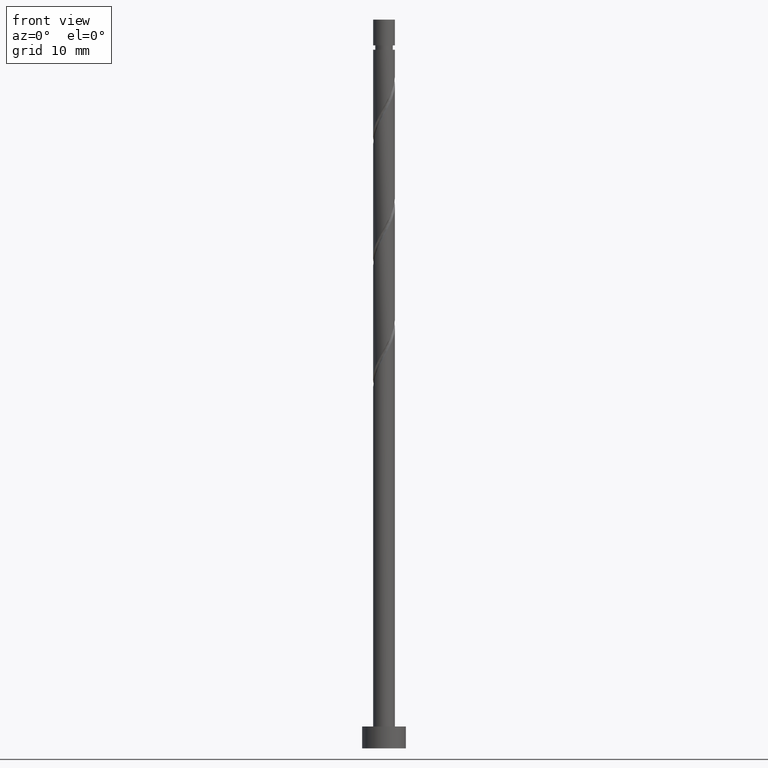
[diagram: clean part render]
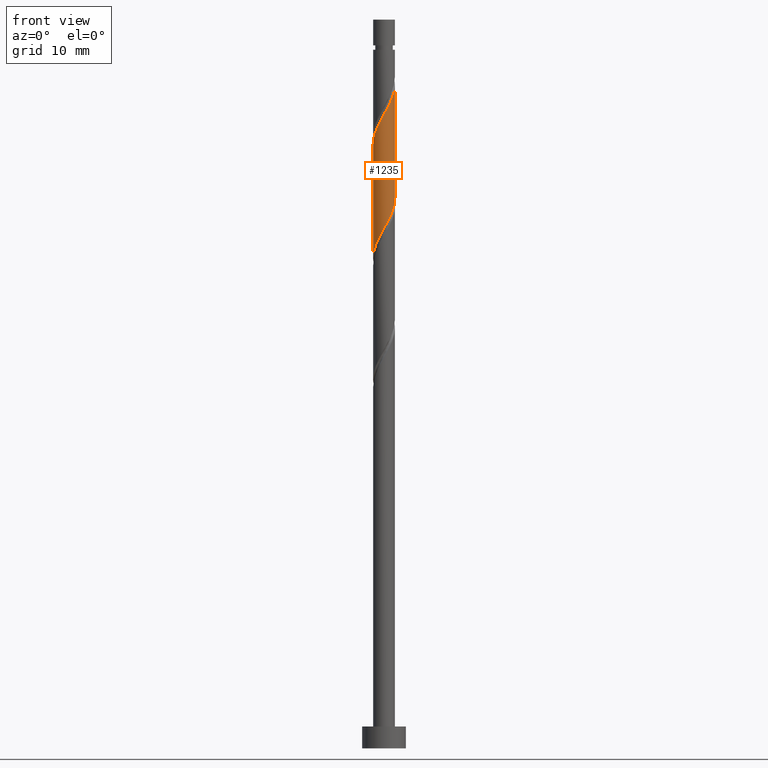
[diagram: same view with one face highlighted and labeled with its STEP entity id]
A machine part, front view. The second image highlights one B-rep face of the part: STEP entity #1235.
In plain terms, the highlighted cylindrical surface (edge-blend (fillet) strip) has radius 1.5 mm, axis along (-0, -0, -1).
Its self-contained STEP definition (entity closure, byte-faithful):
#16 = CARTESIAN_POINT ( 'NONE',  ( -1.500000000000000222, 0.000000000000000000, 100.0000000000000000 ) ) ;
#28 = VERTEX_POINT ( 'NONE', #519 ) ;
#41 = CARTESIAN_POINT ( 'NONE',  ( -1.500000000000004219, -0.2445815577306727495, 67.65151099125755252 ) ) ;
#43 = EDGE_LOOP ( 'NONE', ( #1049, #1172, #1288, #531 ) ) ;
#50 = CARTESIAN_POINT ( 'NONE',  ( 0.9486274347634493509, -1.191663207159257221, 73.17221807205133643 ) ) ;
#58 = CARTESIAN_POINT ( 'NONE',  ( -0.5576968927734298198, -1.417367060811640878, 70.39444029427355076 ) ) ;
#77 = CARTESIAN_POINT ( 'NONE',  ( -1.298991021230816889, -0.7953474310291671623, 84.28332918316249334 ) ) ;
#110 = CARTESIAN_POINT ( 'NONE',  ( 1.123809227997131455, -0.9935053190942120249, 73.63518103501429835 ) ) ;
#114 = CARTESIAN_POINT ( 'NONE',  ( 1.395834070351430256, -0.5492242238340914184, 74.56110696094026480 ) ) ;
#118 = CARTESIAN_POINT ( 'NONE',  ( 0.4838453794137436148, -1.444246813430079435, 72.24629214612544104 ) ) ;
#128 = EDGE_CURVE ( 'NONE', #1031, #1201, #250, .T. ) ;
#146 = CARTESIAN_POINT ( 'NONE',  ( -1.500000000000000000, 2.018254380485350625E-14, 67.22159147889192354 ) ) ;
#179 = CARTESIAN_POINT ( 'NONE',  ( -1.492677119472048064, -0.3031010166390170069, 83.35740325723655531 ) ) ;
#181 = EDGE_CURVE ( 'NONE', #1031, #28, #588, .T. ) ;
#191 = CARTESIAN_POINT ( 'NONE',  ( 1.338286590721358804, -0.7272855081591945714, 89.83888473871802205 ) ) ;
#219 = VECTOR ( 'NONE', #1289, 1000.000000000000000 ) ;
#249 = DIRECTION ( 'NONE',  ( -0.000000000000000000, -0.000000000000000000, -1.000000000000000000 ) ) ;
#250 = LINE ( 'NONE', #16, #219 ) ;
#264 = LINE ( 'NONE', #630, #1043 ) ;
#271 = CARTESIAN_POINT ( 'NONE',  ( 1.008831740058302229, -1.141145796791064537, 88.91295881279206981 ) ) ;
#274 = DIRECTION ( 'NONE',  ( -0.000000000000000000, -0.000000000000000000, -1.000000000000000000 ) ) ;
#309 = CARTESIAN_POINT ( 'NONE',  ( 1.173559165389830294, -0.9342156524751292768, 89.37592177575507435 ) ) ;
#346 = CARTESIAN_POINT ( 'NONE',  ( 1.500000000000000222, -0.01935251149802774684, 75.52090743829296571 ) ) ;
#356 = CARTESIAN_POINT ( 'NONE',  ( 0.7162364070885967049, -1.317955010294668217, 72.70925510908838874 ) ) ;
#364 = CARTESIAN_POINT ( 'NONE',  ( 0.000000000000000000, 0.000000000000000000, 100.0000000000000000 ) ) ;
#370 = CARTESIAN_POINT ( 'NONE',  ( -0.2984962311319862560, -1.470000000000000417, 70.85740325723652688 ) ) ;
#377 = CARTESIAN_POINT ( 'NONE',  ( -0.7162364070885982592, -1.317955010294669549, 85.67221807205137907 ) ) ;
#385 = CARTESIAN_POINT ( 'NONE',  ( 0.7832643164158659133, -1.279256428801354151, 88.44999584982910790 ) ) ;
#387 = FACE_OUTER_BOUND ( 'NONE', #43, .T. ) ;
#490 = CARTESIAN_POINT ( 'NONE',  ( 0.2984962311319860895, -1.470000000000002860, 87.52406992390322671 ) ) ;
#499 = CARTESIAN_POINT ( 'NONE',  ( -0.7832643164158656912, -1.279256428801351486, 69.93147733131063148 ) ) ;
#519 = CARTESIAN_POINT ( 'NONE',  ( 1.500000000000002442, 8.440516098994939783E-16, 91.15988170224781584 ) ) ;
#531 = ORIENTED_EDGE ( 'NONE', *, *, #1342, .F. ) ;
#542 = CARTESIAN_POINT ( 'NONE',  ( 1.499500723504462174, -0.03869858149331685537, 75.48703288686618862 ) ) ;
#584 = CARTESIAN_POINT ( 'NONE',  ( 1.500000000000000000, 9.710328255480970146E-17, 75.55492481222532319 ) ) ;
#588 =( BOUNDED_CURVE ( )  B_SPLINE_CURVE ( 2, ( #747, #1428, #1313, #179, #742, #77, #1065, #953, #377, #835, #1075, #718, #490, #1418, #385, #271, #309, #191, #1465, #635, #1130 ),
 .UNSPECIFIED., .F., .T. ) 
 B_SPLINE_CURVE_WITH_KNOTS ( ( 3, 2, 2, 2, 2, 2, 2, 2, 2, 2, 3 ),
 ( 0.5545248053855288406, 0.5555555555555555802, 0.5694444444444444198, 0.5833333333333332593, 0.5972222222222222099, 0.6111111111111111605, 0.6250000000000000000, 0.6388888888888888395, 0.6527777777777777901, 0.6666666666666667407, 0.6795248053855296178 ),
 .UNSPECIFIED. ) 
 CURVE ( )  GEOMETRIC_REPRESENTATION_ITEM ( )  RATIONAL_B_SPLINE_CURVE ( ( 0.9071930855141256966, 0.9080659294509735302, 0.9090909090909138346, 0.8952797754656482976, 0.9090909090909138346, 0.8952797754656482976, 0.9090909090909138346, 0.8952797754656482976, 0.9090909090909138346, 0.8952797754656482976, 0.9090909090909138346, 0.8952797754656482976, 0.9090909090909138346, 0.8952797754656482976, 0.9090909090909138346, 0.8952797754656482976, 0.9090909090909138346, 0.8952797754656482976, 0.9090909090909138346, 0.8963047551055878248, 0.9071930855141270289 ) ) 
 REPRESENTATION_ITEM ( '' )  );
#597 =( BOUNDED_CURVE ( )  B_SPLINE_CURVE ( 2, ( #1382, #346, #542, #1007, #114, #1042, #110, #50, #356, #118, #906, #961, #370, #58, #499, #1180, #727, #1064, #1190, #41, #146 ),
 .UNSPECIFIED., .F., .T. ) 
 B_SPLINE_CURVE_WITH_KNOTS ( ( 3, 2, 2, 2, 2, 2, 2, 2, 2, 2, 3 ),
 ( 0.5545248053855288406, 0.5555555555555555802, 0.5694444444444444198, 0.5833333333333333703, 0.5972222222222222099, 0.6111111111111111605, 0.6250000000000000000, 0.6388888888888888395, 0.6527777777777777901, 0.6666666666666666297, 0.6795248053855297288 ),
 .UNSPECIFIED. ) 
 CURVE ( )  GEOMETRIC_REPRESENTATION_ITEM ( )  RATIONAL_B_SPLINE_CURVE ( ( 0.9071930855141195904, 0.9080659294509674240, 0.9090909090909077284, 0.8952797754656424134, 0.9090909090909077284, 0.8952797754656424134, 0.9090909090909077284, 0.8952797754656424134, 0.9090909090909077284, 0.8952797754656424134, 0.9090909090909077284, 0.8952797754656424134, 0.9090909090909077284, 0.8952797754656424134, 0.9090909090909077284, 0.8952797754656424134, 0.9090909090909077284, 0.8952797754656424134, 0.9090909090909077284, 0.8963047551055818296, 0.9071930855141211447 ) ) 
 REPRESENTATION_ITEM ( '' )  );
#630 = CARTESIAN_POINT ( 'NONE',  ( 1.500000000000000222, 1.836970198721029934E-16, 100.0000000000000000 ) ) ;
#635 = CARTESIAN_POINT ( 'NONE',  ( 1.500000000000005329, -0.2445815577306764965, 90.72996218988217265 ) ) ;
#705 = CYLINDRICAL_SURFACE ( 'NONE', #979, 1.500000000000000222 ) ;
#718 = CARTESIAN_POINT ( 'NONE',  ( 0.03929556949054185955, -1.522632939188361956, 87.06110696094023638 ) ) ;
#727 = CARTESIAN_POINT ( 'NONE',  ( -1.173559165389829406, -0.9342156524751276114, 69.00555140538470766 ) ) ;
#742 = CARTESIAN_POINT ( 'NONE',  ( -1.395834070351432477, -0.5492242238340921956, 83.82036622019953143 ) ) ;
#747 = CARTESIAN_POINT ( 'NONE',  ( -1.500000000000002887, 1.221260515208559988E-15, 82.82654836891448724 ) ) ;
#835 = CARTESIAN_POINT ( 'NONE',  ( -0.4838453794137451136, -1.444246813430081655, 86.13518103501431256 ) ) ;
#906 = CARTESIAN_POINT ( 'NONE',  ( 0.2222749049616007666, -1.483439876309219363, 71.78332918316246491 ) ) ;
#946 = VERTEX_POINT ( 'NONE', #584 ) ;
#953 = CARTESIAN_POINT ( 'NONE',  ( -0.9486274347634512383, -1.191663207159258331, 85.20925510908840295 ) ) ;
#961 = CARTESIAN_POINT ( 'NONE',  ( -0.03929556949054307385, -1.522632939188359291, 71.32036622019947458 ) ) ;
#965 = CARTESIAN_POINT ( 'NONE',  ( -1.500000000000000000, 2.018254380485350625E-14, 67.22159147889192354 ) ) ;
#979 = AXIS2_PLACEMENT_3D ( 'NONE', #364, #249, #1405 ) ;
#1007 = CARTESIAN_POINT ( 'NONE',  ( 1.492677119472045844, -0.3031010166390172289, 75.02406992390318408 ) ) ;
#1031 = VERTEX_POINT ( 'NONE', #1417 ) ;
#1042 = CARTESIAN_POINT ( 'NONE',  ( 1.298991021230813780, -0.7953474310291673843, 74.09814399797727447 ) ) ;
#1043 = VECTOR ( 'NONE', #274, 1000.000000000000000 ) ;
#1049 = ORIENTED_EDGE ( 'NONE', *, *, #1453, .F. ) ;
#1064 = CARTESIAN_POINT ( 'NONE',  ( -1.338286590721356806, -0.7272855081591931281, 68.54258844242171733 ) ) ;
#1065 = CARTESIAN_POINT ( 'NONE',  ( -1.123809227997133675, -0.9935053190942124690, 84.74629214612544104 ) ) ;
#1075 = CARTESIAN_POINT ( 'NONE',  ( -0.2222749049616017381, -1.483439876309221361, 86.59814399797730289 ) ) ;
#1130 = CARTESIAN_POINT ( 'NONE',  ( 1.500000000000002220, 8.440516098994939783E-16, 91.15988170224781584 ) ) ;
#1172 = ORIENTED_EDGE ( 'NONE', *, *, #181, .F. ) ;
#1180 = CARTESIAN_POINT ( 'NONE',  ( -1.008831740058301119, -1.141145796791062539, 69.46851436834764115 ) ) ;
#1190 = CARTESIAN_POINT ( 'NONE',  ( -1.422305459129117988, -0.4764946809057883925, 68.07962547945876963 ) ) ;
#1201 = VERTEX_POINT ( 'NONE', #965 ) ;
#1235 = ADVANCED_FACE ( 'NONE', ( #387 ), #705, .T. ) ;
#1288 = ORIENTED_EDGE ( 'NONE', *, *, #128, .T. ) ;
#1289 = DIRECTION ( 'NONE',  ( -0.000000000000000000, -0.000000000000000000, -1.000000000000000000 ) ) ;
#1313 = CARTESIAN_POINT ( 'NONE',  ( -1.499500723504464617, -0.03869858149331600883, 82.89444029427357918 ) ) ;
#1342 = EDGE_CURVE ( 'NONE', #946, #1201, #597, .T. ) ;
#1382 = CARTESIAN_POINT ( 'NONE',  ( 1.500000000000000000, 9.710328255480970146E-17, 75.55492481222532319 ) ) ;
#1405 = DIRECTION ( 'NONE',  ( -1.000000000000000000, 0.000000000000000000, 0.000000000000000000 ) ) ;
#1417 = CARTESIAN_POINT ( 'NONE',  ( -1.500000000000002887, 1.221260515208560185E-15, 82.82654836891447303 ) ) ;
#1418 = CARTESIAN_POINT ( 'NONE',  ( 0.5576968927734298198, -1.417367060811643764, 87.98703288686617441 ) ) ;
#1428 = CARTESIAN_POINT ( 'NONE',  ( -1.500000000000002665, -0.01935251149802669213, 82.86056574284680210 ) ) ;
#1453 = EDGE_CURVE ( 'NONE', #28, #946, #264, .T. ) ;
#1465 = CARTESIAN_POINT ( 'NONE',  ( 1.422305459129119987, -0.4764946809057903354, 90.30184770168101238 ) ) ;